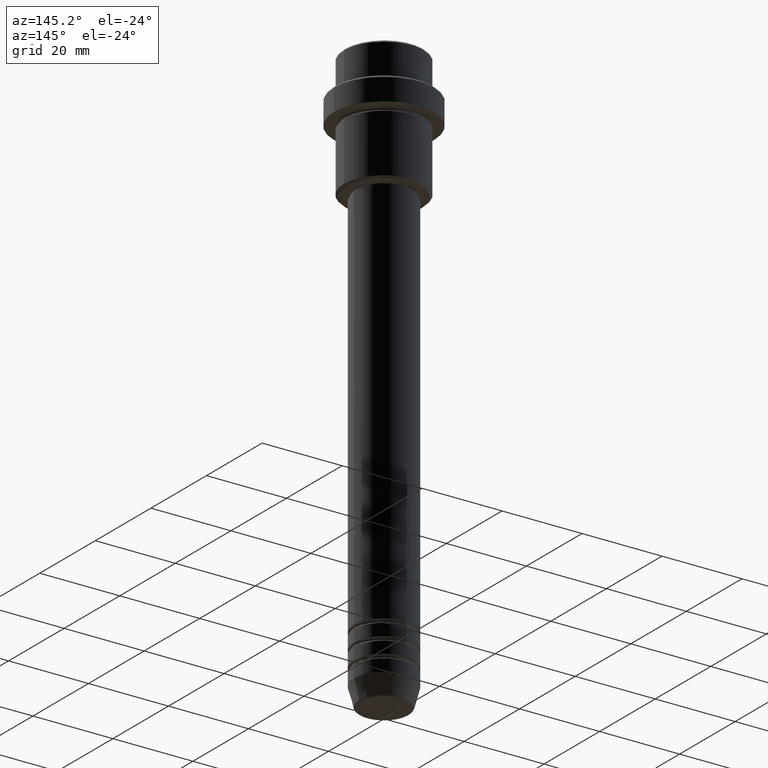
[diagram: clean part render]
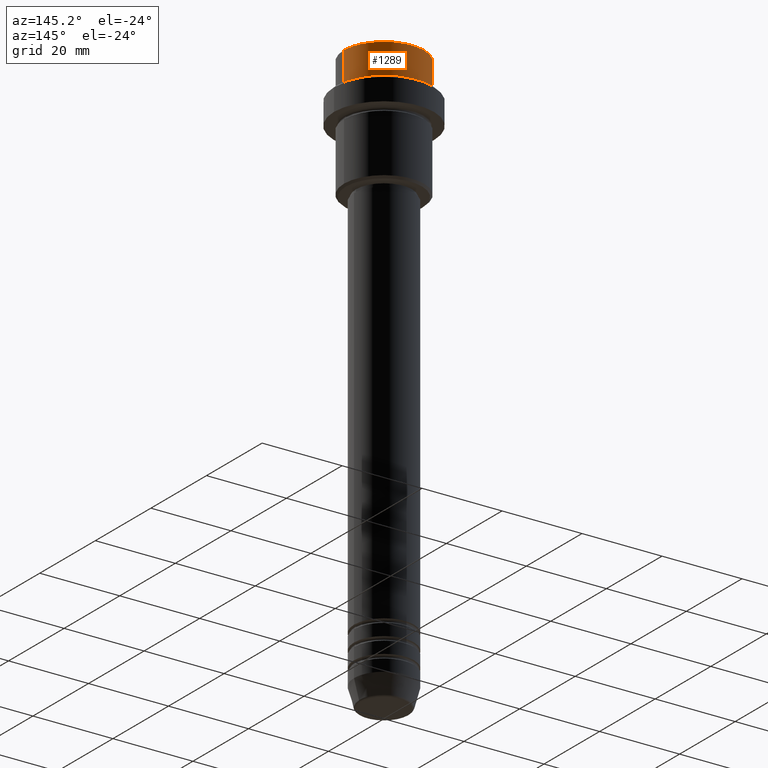
[diagram: same view with one face highlighted and labeled with its STEP entity id]
A machine part, auxiliary view. The second image highlights one B-rep face of the part: STEP entity #1289.
In plain terms, the highlighted cylindrical surface (partial cylindrical patch) has radius 10 mm, axis along (-0, -0, 1).
Its self-contained STEP definition (entity closure, byte-faithful):
#10 = DIRECTION ( 'NONE',  ( -0.000000000000000000, -0.000000000000000000, 1.000000000000000000 ) ) ;
#18 = DIRECTION ( 'NONE',  ( 1.000000000000000000, 0.000000000000000000, 0.000000000000000000 ) ) ;
#32 = CIRCLE ( 'NONE', #415, 9.999999999999998224 ) ;
#122 = EDGE_CURVE ( 'NONE', #1257, #1361, #1380, .T. ) ;
#136 = EDGE_CURVE ( 'NONE', #1257, #707, #672, .T. ) ;
#157 = CARTESIAN_POINT ( 'NONE',  ( -9.999999999999998224, 1.224646799147353059E-15, 0.000000000000000000 ) ) ;
#180 = DIRECTION ( 'NONE',  ( 0.000000000000000000, 0.000000000000000000, -1.000000000000000000 ) ) ;
#183 = CARTESIAN_POINT ( 'NONE',  ( 9.999999999999998224, 0.000000000000000000, -0.4999999999999970024 ) ) ;
#191 = ORIENTED_EDGE ( 'NONE', *, *, #136, .F. ) ;
#245 = EDGE_CURVE ( 'NONE', #1361, #312, #475, .T. ) ;
#252 = ORIENTED_EDGE ( 'NONE', *, *, #122, .T. ) ;
#312 = VERTEX_POINT ( 'NONE', #599 ) ;
#338 = DIRECTION ( 'NONE',  ( -0.000000000000000000, -0.000000000000000000, 1.000000000000000000 ) ) ;
#344 = DIRECTION ( 'NONE',  ( 1.000000000000000000, 0.000000000000000000, 0.000000000000000000 ) ) ;
#413 = VECTOR ( 'NONE', #580, 1000.000000000000000 ) ;
#415 = AXIS2_PLACEMENT_3D ( 'NONE', #760, #180, #1388 ) ;
#425 = CARTESIAN_POINT ( 'NONE',  ( 9.999999999999998224, 0.000000000000000000, -7.999999999999998224 ) ) ;
#471 = EDGE_CURVE ( 'NONE', #312, #707, #32, .T. ) ;
#475 = LINE ( 'NONE', #157, #413 ) ;
#501 = AXIS2_PLACEMENT_3D ( 'NONE', #782, #685, #344 ) ;
#532 = EDGE_LOOP ( 'NONE', ( #252, #1049, #1322, #191 ) ) ;
#565 = FACE_OUTER_BOUND ( 'NONE', #532, .T. ) ;
#579 = AXIS2_PLACEMENT_3D ( 'NONE', #871, #10, #18 ) ;
#580 = DIRECTION ( 'NONE',  ( -0.000000000000000000, -0.000000000000000000, 1.000000000000000000 ) ) ;
#599 = CARTESIAN_POINT ( 'NONE',  ( -9.999999999999998224, 1.224646799147353059E-15, -0.4999999999999970024 ) ) ;
#672 = LINE ( 'NONE', #1233, #1175 ) ;
#674 = CYLINDRICAL_SURFACE ( 'NONE', #579, 9.999999999999998224 ) ;
#685 = DIRECTION ( 'NONE',  ( -0.000000000000000000, -0.000000000000000000, 1.000000000000000000 ) ) ;
#707 = VERTEX_POINT ( 'NONE', #183 ) ;
#760 = CARTESIAN_POINT ( 'NONE',  ( 0.000000000000000000, 0.000000000000000000, -0.4999999999999970024 ) ) ;
#782 = CARTESIAN_POINT ( 'NONE',  ( 0.000000000000000000, 0.000000000000000000, -7.999999999999998224 ) ) ;
#871 = CARTESIAN_POINT ( 'NONE',  ( 0.000000000000000000, 0.000000000000000000, 0.000000000000000000 ) ) ;
#1049 = ORIENTED_EDGE ( 'NONE', *, *, #245, .T. ) ;
#1175 = VECTOR ( 'NONE', #338, 1000.000000000000000 ) ;
#1233 = CARTESIAN_POINT ( 'NONE',  ( 9.999999999999998224, 0.000000000000000000, 0.000000000000000000 ) ) ;
#1257 = VERTEX_POINT ( 'NONE', #425 ) ;
#1289 = ADVANCED_FACE ( 'NONE', ( #565 ), #674, .T. ) ;
#1322 = ORIENTED_EDGE ( 'NONE', *, *, #471, .T. ) ;
#1326 = CARTESIAN_POINT ( 'NONE',  ( -9.999999999999998224, 1.224646799147353059E-15, -7.999999999999998224 ) ) ;
#1361 = VERTEX_POINT ( 'NONE', #1326 ) ;
#1380 = CIRCLE ( 'NONE', #501, 9.999999999999998224 ) ;
#1388 = DIRECTION ( 'NONE',  ( 1.000000000000000000, 0.000000000000000000, 0.000000000000000000 ) ) ;